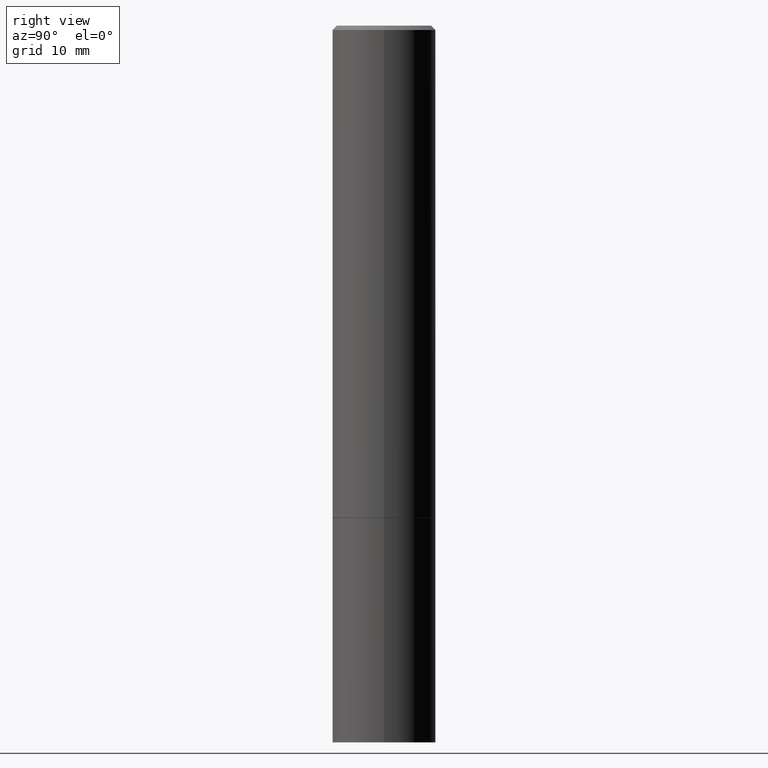
[diagram: clean part render]
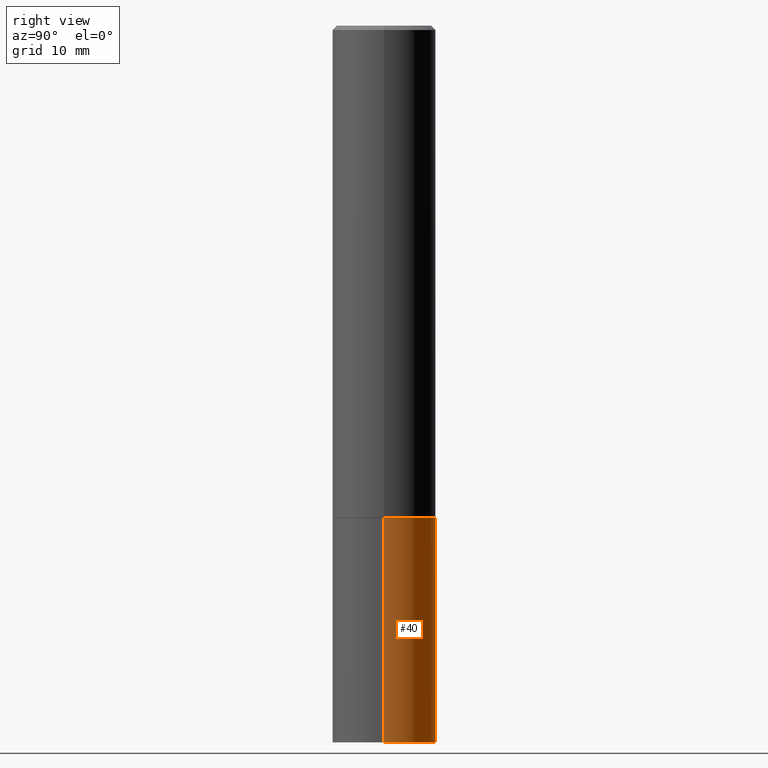
[diagram: same view with one face highlighted and labeled with its STEP entity id]
A machine part, right view. The second image highlights one B-rep face of the part: STEP entity #40.
In plain terms, the highlighted cylindrical surface (partial cylindrical patch) has radius 5.9995 mm, axis along (-0, 0, 1).
Its self-contained STEP definition (entity closure, byte-faithful):
#24 = DIRECTION ( 'NONE',  ( 1.000000000000000000, -6.982962677686266711E-15, 4.876176775795936353E-29 ) ) ;
#30 = CARTESIAN_POINT ( 'NONE',  ( -0.2361999999999999933, -7.943871479852467996E-15, -2.244100000000000428 ) ) ;
#39 = DIRECTION ( 'NONE',  ( -2.445468806185136877E-29, 3.491481338843145188E-15, 1.000000000000000000 ) ) ;
#40 = ADVANCED_FACE ( 'NONE', ( #223 ), #160, .T. ) ;
#65 = VERTEX_POINT ( 'NONE', #304 ) ;
#69 = VECTOR ( 'NONE', #352, 39.37007874015748143 ) ;
#71 = LINE ( 'NONE', #236, #69 ) ;
#73 = ORIENTED_EDGE ( 'NONE', *, *, #244, .T. ) ;
#74 = AXIS2_PLACEMENT_3D ( 'NONE', #277, #270, #24 ) ;
#76 = ORIENTED_EDGE ( 'NONE', *, *, #339, .T. ) ;
#85 = AXIS2_PLACEMENT_3D ( 'NONE', #178, #211, #97 ) ;
#97 = DIRECTION ( 'NONE',  ( 1.000000000000000000, -6.982962677686265133E-15, 0.000000000000000000 ) ) ;
#100 = ORIENTED_EDGE ( 'NONE', *, *, #265, .F. ) ;
#127 = AXIS2_PLACEMENT_3D ( 'NONE', #266, #175, #128 ) ;
#128 = DIRECTION ( 'NONE',  ( 1.000000000000000000, -6.982962677686269077E-15, 0.000000000000000000 ) ) ;
#157 = CIRCLE ( 'NONE', #127, 0.2361999999999999933 ) ;
#158 = ORIENTED_EDGE ( 'NONE', *, *, #303, .F. ) ;
#160 = CYLINDRICAL_SURFACE ( 'NONE', #74, 0.2361999999999999933 ) ;
#175 = DIRECTION ( 'NONE',  ( -2.445468806185136597E-29, 3.491481338843145583E-15, 1.000000000000000000 ) ) ;
#178 = CARTESIAN_POINT ( 'NONE',  ( 7.991058417971171713E-29, -1.140911357093774644E-14, -3.267700000000000049 ) ) ;
#211 = DIRECTION ( 'NONE',  ( -2.445468806185136597E-29, 3.491481338843145583E-15, 1.000000000000000000 ) ) ;
#220 = VERTEX_POINT ( 'NONE', #30 ) ;
#223 = FACE_OUTER_BOUND ( 'NONE', #346, .T. ) ;
#226 = VECTOR ( 'NONE', #39, 39.37007874015748143 ) ;
#235 = CARTESIAN_POINT ( 'NONE',  ( 0.2361999999999999933, -1.649375784469496131E-15, 1.151752954443000088E-29 ) ) ;
#236 = CARTESIAN_POINT ( 'NONE',  ( -0.2361999999999999933, 1.678301941865356591E-15, -1.161852468318208757E-29 ) ) ;
#238 = CARTESIAN_POINT ( 'NONE',  ( -0.2361999999999999933, -7.943871479852467996E-15, -3.267700000000000049 ) ) ;
#244 = EDGE_CURVE ( 'NONE', #345, #220, #71, .T. ) ;
#251 = CIRCLE ( 'NONE', #85, 0.2361999999999999933 ) ;
#262 = LINE ( 'NONE', #235, #226 ) ;
#265 = EDGE_CURVE ( 'NONE', #290, #220, #157, .T. ) ;
#266 = CARTESIAN_POINT ( 'NONE',  ( 5.487876547960065873E-29, -7.835233272497903917E-15, -2.244100000000000428 ) ) ;
#270 = DIRECTION ( 'NONE',  ( -2.445468806185136597E-29, 3.491481338843145583E-15, 1.000000000000000000 ) ) ;
#277 = CARTESIAN_POINT ( 'NONE',  ( 0.000000000000000000, 0.000000000000000000, 0.000000000000000000 ) ) ;
#290 = VERTEX_POINT ( 'NONE', #347 ) ;
#303 = EDGE_CURVE ( 'NONE', #65, #290, #262, .T. ) ;
#304 = CARTESIAN_POINT ( 'NONE',  ( 0.2361999999999999933, -1.305848935540724297E-14, -3.267700000000000049 ) ) ;
#339 = EDGE_CURVE ( 'NONE', #65, #345, #251, .T. ) ;
#345 = VERTEX_POINT ( 'NONE', #238 ) ;
#346 = EDGE_LOOP ( 'NONE', ( #76, #73, #100, #158 ) ) ;
#347 = CARTESIAN_POINT ( 'NONE',  ( 0.2361999999999999933, -9.484609056967400443E-15, -2.244100000000000428 ) ) ;
#352 = DIRECTION ( 'NONE',  ( -2.445468806185136877E-29, 3.491481338843145188E-15, 1.000000000000000000 ) ) ;